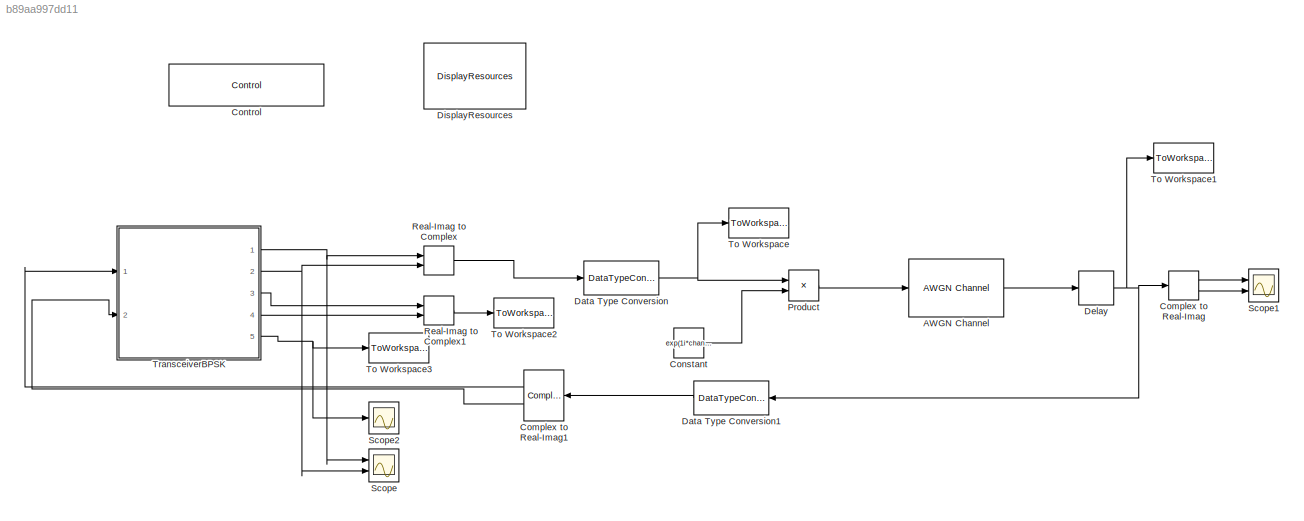
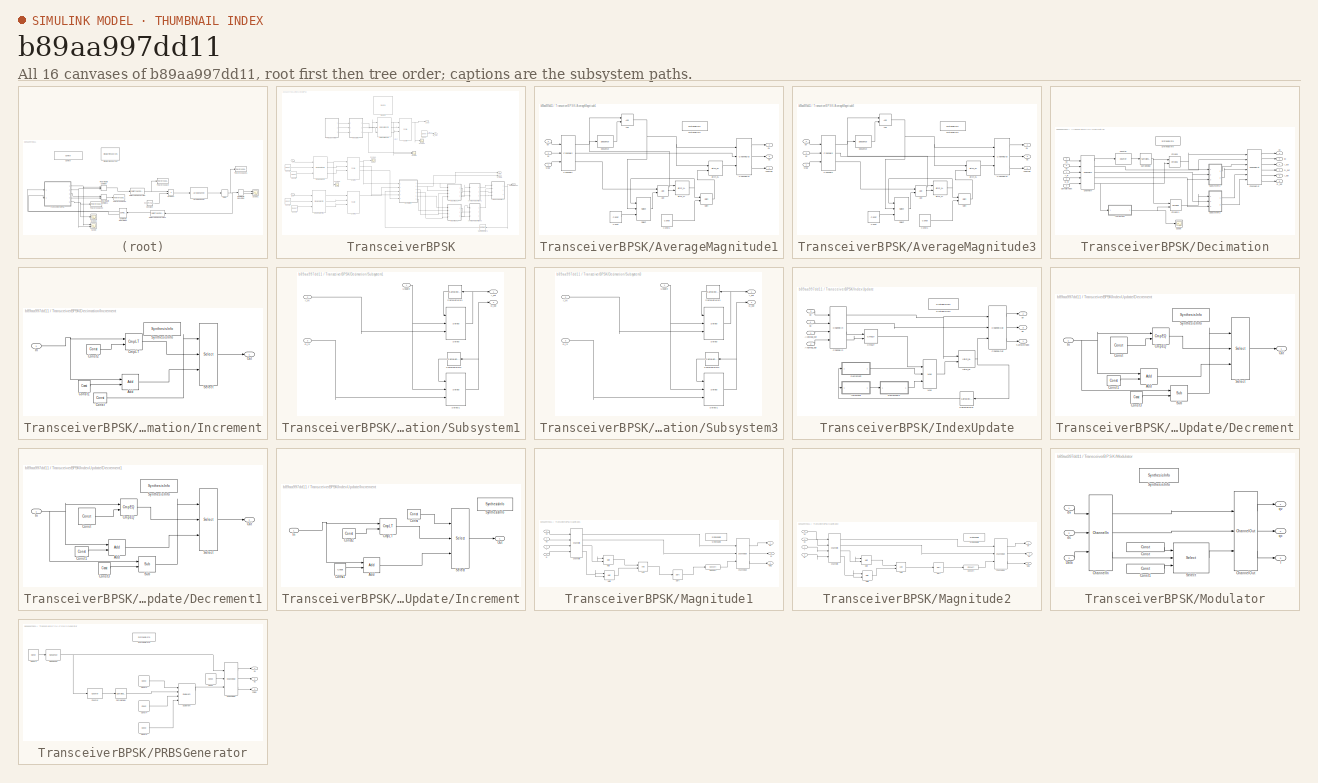
[diagram: thumbnail index - all 16 canvases of the model, root first then tree order]
MODEL slx_b89aa997dd11
KIND model
CONFIG AbsTol = auto
CONFIG EnableMultiTasking = off
CONFIG FixedStep = stepSize
CONFIG InitFcn = MCC150_setup
CONFIG MaxStep = auto
CONFIG MinStep = auto
CONFIG RelTol = 1e-3
CONFIG SampleTimeConstraint = Unconstrained
CONFIG Solver = FixedStepAuto
CONFIG SolverName = FixedStepAuto
CONFIG StartTime = 0.0
CONFIG StopTime = stopTime*6
BLOCK [Reference] AWGN Channel  REF=commchan3/AWGN
Channel
  Ports = [1, 1]
  SourceBlock = commchan3/AWGN\nChannel
  SourceProductBaseCode = CM
  SourceProductName = Communications System Toolbox
  SourceType = AWGN Channel
  UserDataPersistent = on
BLOCK [ComplexToRealImag] Complex to Real-Imag
  Ports = [1, 2]
BLOCK [ComplexToRealImag] Complex to Real-Imag1
  Ports = [1, 2]
BLOCK [Constant] Constant
  Value = exp(1i*chan.phase)
BLOCK [Reference] Control  REF=DSPBABase/Control
  Ports = []
  SourceBlock = DSPBABase/Control
  SourceType = DSP Builder Advanced Blockset Control Block
BLOCK [DataTypeConversion] Data Type Conversion
  OutDataTypeStr = double
  RndMeth = Floor
  SaturateOnIntegerOverflow = off
BLOCK [DataTypeConversion] Data Type Conversion1
  OutDataTypeStr = fixdt(true, wordLength)
  OutMax = 2^(wordLength-1)-1
  OutMin = -(2^(wordLength-1)-1)
  RndMeth = Floor
  SaturateOnIntegerOverflow = off
BLOCK [Delay] Delay
  DelayLength = chan.dly
  InputPortMap = u0
  Ports = [1, 1]
BLOCK [Reference] DisplayResources  REF=DSPBAUtilities/DisplayResources
  Ports = []
  SourceBlock = DSPBAUtilities/DisplayResources
BLOCK [Product] Product
  InputSameDT = off
  OutDataTypeStr = Inherit: Inherit via internal rule
  Ports = [2, 1]
  RndMeth = Floor
  SaturateOnIntegerOverflow = off
BLOCK [RealImagToComplex] Real-Imag to Complex
  Ports = [2, 1]
BLOCK [RealImagToComplex] Real-Imag to Complex1
  Ports = [2, 1]
BLOCK [Scope] Scope
  NumInputPorts = 2
  Ports = [2]
  ScopeSpecificationString = Simulink.scopes.TimeScopeBlockCfg('CurrentConfiguration', extmgr.ConfigurationSet(extmgr.Configuration('Core','General UI',true),extmgr.Configuration('Core','Source UI',true),extmgr.Configuration('Sources','WiredSimulink',true,'DataLoggingVariableName','ScopeData2'),extmgr.Configuration('Visuals','Time Domain',true,'SerializedDisplays',{struct('MinYLimReal','-1357.5','MaxYLimReal','1357.5','YLabel...<+1434ch>
BLOCK [Scope] Scope1
  NumInputPorts = 2
  Ports = [2]
  ScopeSpecificationString = Simulink.scopes.TimeScopeBlockCfg('CurrentConfiguration', extmgr.ConfigurationSet(extmgr.Configuration('Core','General UI',true),extmgr.Configuration('Core','Source UI',true),extmgr.Configuration('Sources','WiredSimulink',true,'DataLoggingVariableName','ScopeData3'),extmgr.Configuration('Visuals','Time Domain',true,'SerializedDisplays',{struct('MinYLimReal','-1259.13146','MaxYLimReal','1286.57545'...<+1459ch>
BLOCK [Scope] Scope2
  NumInputPorts = 1
  Ports = [1]
  ScopeSpecificationString = Simulink.scopes.TimeScopeBlockCfg('CurrentConfiguration', extmgr.ConfigurationSet(extmgr.Configuration('Core','General UI',true),extmgr.Configuration('Core','Source UI',true),extmgr.Configuration('Sources','WiredSimulink',true,'DataLoggingVariableName','ScopeData1'),extmgr.Configuration('Visuals','Time Domain',true,'SerializedDisplays',{struct('MinYLimReal','-1.00000','MaxYLimReal','1.00000','YLab...<+1376ch>
BLOCK [ToWorkspace] To Workspace
  FixptAsFi = on
  MaxDataPoints = inf
  Ports = [1]
  SampleTime = -1
  Save2DSignal = 3-D array (concatenate along third dimension)
  SaveFormat = Timeseries
  VariableName = txSave
BLOCK [ToWorkspace] To Workspace1
  FixptAsFi = on
  MaxDataPoints = inf
  Ports = [1]
  SampleTime = -1
  Save2DSignal = 3-D array (concatenate along third dimension)
  SaveFormat = Timeseries
  VariableName = rxSave
BLOCK [ToWorkspace] To Workspace2
  FixptAsFi = on
  MaxDataPoints = inf
  Ports = [1]
  SampleTime = -1
  Save2DSignal = 3-D array (concatenate along third dimension)
  SaveFormat = Timeseries
  VariableName = SymbSave
BLOCK [ToWorkspace] To Workspace3
  FixptAsFi = on
  MaxDataPoints = inf
  Ports = [1]
  SampleTime = -1
  Save2DSignal = 3-D array (concatenate along third dimension)
  SaveFormat = Timeseries
  VariableName = SampleIndex
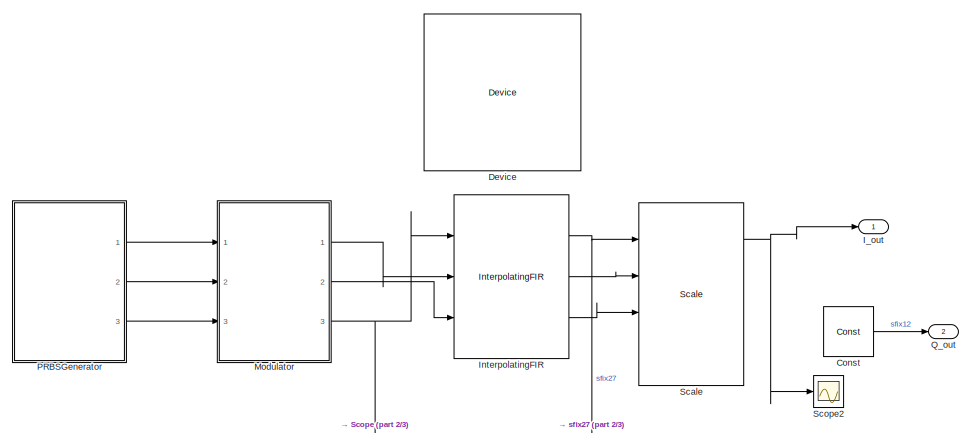
[diagram: TransceiverBPSK - part 1/3, top center region]
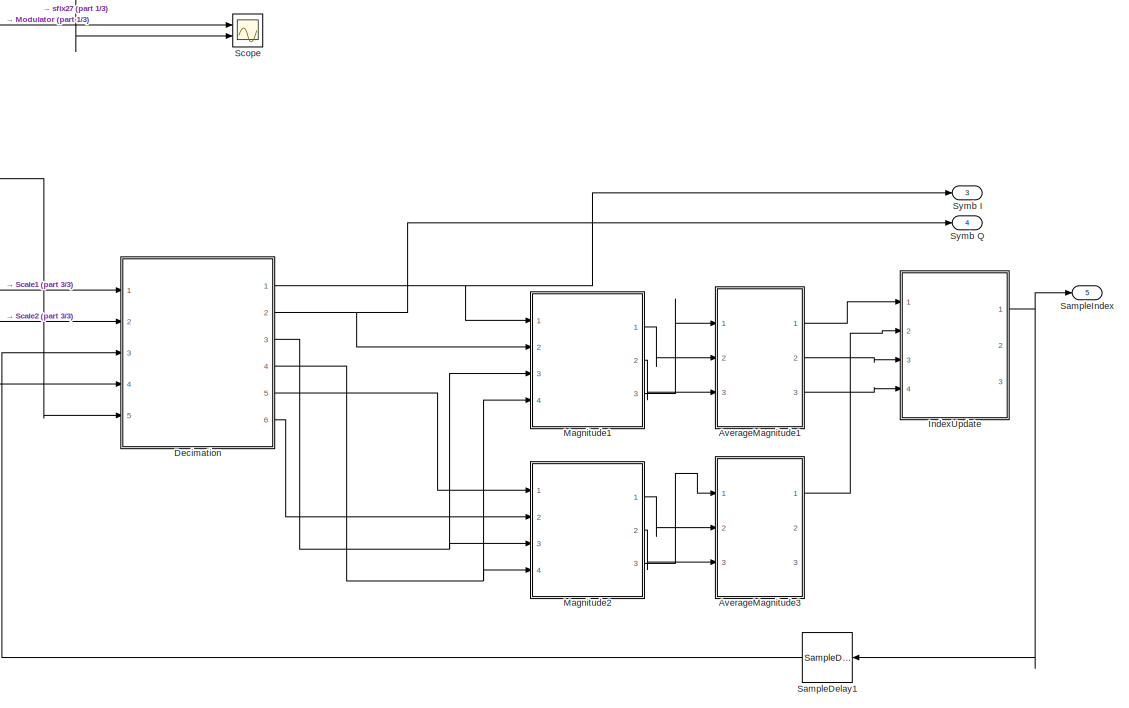
[diagram: TransceiverBPSK - part 2/3, bottom right region]
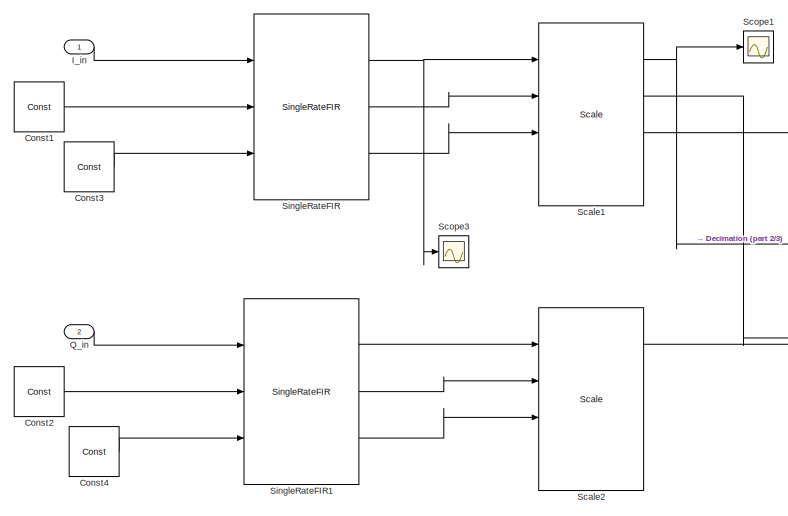
[diagram: TransceiverBPSK - part 3/3, middle left region]
BLOCK [SubSystem] TransceiverBPSK
  Ports = [2, 5]
  RequestExecContextInheritance = off
  Variant = off
BLOCK [Outport] TransceiverBPSK/ SampleIndex
  IconDisplay = Port number
  Port = 5
BLOCK [Outport] TransceiverBPSK/ Symb I 
  IconDisplay = Port number
  Port = 3
BLOCK [Outport] TransceiverBPSK/ Symb Q
  IconDisplay = Port number
  Port = 4
BLOCK [SubSystem] TransceiverBPSK/AverageMagnitude1
  Ports = [3, 3]
  RequestExecContextInheritance = off
  Variant = off
BLOCK [Reference] TransceiverBPSK/AverageMagnitude1/Add  REF=DSPBAPrim/Add
  Ports = [2, 1]
  SourceBlock = DSPBAPrim/Add
  SourceType = DSP Builder Advanced Blockset primitive
BLOCK [Reference] TransceiverBPSK/AverageMagnitude1/And  REF=DSPBAPrim/And
  Ports = [2, 1]
  SourceBlock = DSPBAPrim/And
  SourceType = DSP Builder Advanced Blockset primitive
BLOCK [Outport] TransceiverBPSK/AverageMagnitude1/AvgMag
  IconDisplay = Port number
BLOCK [Reference] TransceiverBPSK/AverageMagnitude1/ChannelIn  REF=DSPBAPrim/ChannelIn
  Ports = [3, 3]
  SourceBlock = DSPBAPrim/ChannelIn
  SourceType = DSP Builder Advanced Blockset primitive
BLOCK [Reference] TransceiverBPSK/AverageMagnitude1/ChannelOut  REF=DSPBAPrim/ChannelOut
  Ports = [3, 3]
  SourceBlock = DSPBAPrim/ChannelOut
  SourceType = DSP Builder Advanced Blockset primitive
BLOCK [Reference] TransceiverBPSK/AverageMagnitude1/Const  REF=DSPBAPrim/Const
  Ports = [0, 1]
  SourceBlock = DSPBAPrim/Const
  SourceType = DSP Builder Advanced Blockset primitive
BLOCK [Reference] TransceiverBPSK/AverageMagnitude1/Const1  REF=DSPBAPrim/Const
  Ports = [0, 1]
  SourceBlock = DSPBAPrim/Const
  SourceType = DSP Builder Advanced Blockset primitive
BLOCK [Inport] TransceiverBPSK/AverageMagnitude1/Mag
  IconDisplay = Port number
BLOCK [Reference] TransceiverBPSK/AverageMagnitude1/Select  REF=DSPBAPrim/Select
  Ports = [3, 1]
  SourceBlock = DSPBAPrim/Select
  SourceType = DSP Builder Advanced Blockset primitive
BLOCK [Reference] TransceiverBPSK/AverageMagnitude1/Sequence  REF=DSPBAPrim/Sequence
  Ports = [1, 1]
  SourceBlock = DSPBAPrim/Sequence
  SourceType = DSP Builder Advanced Blockset primitive
BLOCK [Reference] TransceiverBPSK/AverageMagnitude1/Shift  REF=DSPBAPrim/Shift
  Ports = [2, 1]
  SourceBlock = DSPBAPrim/Shift
  SourceType = DSP Builder Advanced Blockset primitive
BLOCK [Reference] TransceiverBPSK/AverageMagnitude1/SynthesisInfo  REF=DSPBAPrim/SynthesisInfo
  Ports = []
  SourceBlock = DSPBAPrim/SynthesisInfo
  SourceType = DSP Builder Advanced Blockset primitive
BLOCK [Inport] TransceiverBPSK/AverageMagnitude1/dc
  IconDisplay = Port number
  Port = 3
BLOCK [Inport] TransceiverBPSK/AverageMagnitude1/dv
  IconDisplay = Port number
  Port = 2
BLOCK [Reference] TransceiverBPSK/AverageMagnitude1/latch_0L  REF=DSPBAControl/latch_0L
  Ports = [2, 1]
  SourceBlock = DSPBAControl/latch_0L
BLOCK [Reference] TransceiverBPSK/AverageMagnitude1/latch_1L  REF=DSPBAControl/latch_1L
  Ports = [2, 1]
  SourceBlock = DSPBAControl/latch_1L
BLOCK [Outport] TransceiverBPSK/AverageMagnitude1/qc
  IconDisplay = Port number
  Port = 3
BLOCK [Outport] TransceiverBPSK/AverageMagnitude1/qv
  IconDisplay = Port number
  Port = 2
BLOCK [SubSystem] TransceiverBPSK/AverageMagnitude3
  Ports = [3, 3]
  RequestExecContextInheritance = off
  Variant = off
BLOCK [Reference] TransceiverBPSK/AverageMagnitude3/Add  REF=DSPBAPrim/Add
  Ports = [2, 1]
  SourceBlock = DSPBAPrim/Add
  SourceType = DSP Builder Advanced Blockset primitive
BLOCK [Reference] TransceiverBPSK/AverageMagnitude3/And  REF=DSPBAPrim/And
  Ports = [2, 1]
  SourceBlock = DSPBAPrim/And
  SourceType = DSP Builder Advanced Blockset primitive
BLOCK [Outport] TransceiverBPSK/AverageMagnitude3/AvgMag
  IconDisplay = Port number
BLOCK [Reference] TransceiverBPSK/AverageMagnitude3/ChannelIn  REF=DSPBAPrim/ChannelIn
  Ports = [3, 3]
  SourceBlock = DSPBAPrim/ChannelIn
  SourceType = DSP Builder Advanced Blockset primitive
BLOCK [Reference] TransceiverBPSK/AverageMagnitude3/ChannelOut  REF=DSPBAPrim/ChannelOut
  Ports = [3, 3]
  SourceBlock = DSPBAPrim/ChannelOut
  SourceType = DSP Builder Advanced Blockset primitive
BLOCK [Reference] TransceiverBPSK/AverageMagnitude3/Const  REF=DSPBAPrim/Const
  Ports = [0, 1]
  SourceBlock = DSPBAPrim/Const
  SourceType = DSP Builder Advanced Blockset primitive
BLOCK [Reference] TransceiverBPSK/AverageMagnitude3/Const1  REF=DSPBAPrim/Const
  Ports = [0, 1]
  SourceBlock = DSPBAPrim/Const
  SourceType = DSP Builder Advanced Blockset primitive
BLOCK [Inport] TransceiverBPSK/AverageMagnitude3/Mag
  IconDisplay = Port number
BLOCK [Reference] TransceiverBPSK/AverageMagnitude3/Select  REF=DSPBAPrim/Select
  Ports = [3, 1]
  SourceBlock = DSPBAPrim/Select
  SourceType = DSP Builder Advanced Blockset primitive
BLOCK [Reference] TransceiverBPSK/AverageMagnitude3/Sequence  REF=DSPBAPrim/Sequence
  Ports = [1, 1]
  SourceBlock = DSPBAPrim/Sequence
  SourceType = DSP Builder Advanced Blockset primitive
BLOCK [Reference] TransceiverBPSK/AverageMagnitude3/Shift  REF=DSPBAPrim/Shift
  Ports = [2, 1]
  SourceBlock = DSPBAPrim/Shift
  SourceType = DSP Builder Advanced Blockset primitive
BLOCK [Reference] TransceiverBPSK/AverageMagnitude3/SynthesisInfo  REF=DSPBAPrim/SynthesisInfo
  Ports = []
  SourceBlock = DSPBAPrim/SynthesisInfo
  SourceType = DSP Builder Advanced Blockset primitive
BLOCK [Inport] TransceiverBPSK/AverageMagnitude3/dc
  IconDisplay = Port number
  Port = 3
BLOCK [Inport] TransceiverBPSK/AverageMagnitude3/dv
  IconDisplay = Port number
  Port = 2
BLOCK [Reference] TransceiverBPSK/AverageMagnitude3/latch_0L  REF=DSPBAControl/latch_0L
  Ports = [2, 1]
  SourceBlock = DSPBAControl/latch_0L
BLOCK [Reference] TransceiverBPSK/AverageMagnitude3/latch_1L  REF=DSPBAControl/latch_1L
  Ports = [2, 1]
  SourceBlock = DSPBAControl/latch_1L
BLOCK [Outport] TransceiverBPSK/AverageMagnitude3/qc
  IconDisplay = Port number
  Port = 3
BLOCK [Outport] TransceiverBPSK/AverageMagnitude3/qv
  IconDisplay = Port number
  Port = 2
BLOCK [Reference] TransceiverBPSK/Const  REF=DSPBAPrim/Const
  Ports = [0, 1]
  SourceBlock = DSPBAPrim/Const
  SourceType = DSP Builder Advanced Blockset primitive
BLOCK [Reference] TransceiverBPSK/Const1  REF=DSPBAPrim/Const
  Ports = [0, 1]
  SourceBlock = DSPBAPrim/Const
  SourceType = DSP Builder Advanced Blockset primitive
BLOCK [Reference] TransceiverBPSK/Const2  REF=DSPBAPrim/Const
  Ports = [0, 1]
  SourceBlock = DSPBAPrim/Const
  SourceType = DSP Builder Advanced Blockset primitive
BLOCK [Reference] TransceiverBPSK/Const3  REF=DSPBAPrim/Const
  Ports = [0, 1]
  SourceBlock = DSPBAPrim/Const
  SourceType = DSP Builder Advanced Blockset primitive
BLOCK [Reference] TransceiverBPSK/Const4  REF=DSPBAPrim/Const
  Ports = [0, 1]
  SourceBlock = DSPBAPrim/Const
  SourceType = DSP Builder Advanced Blockset primitive
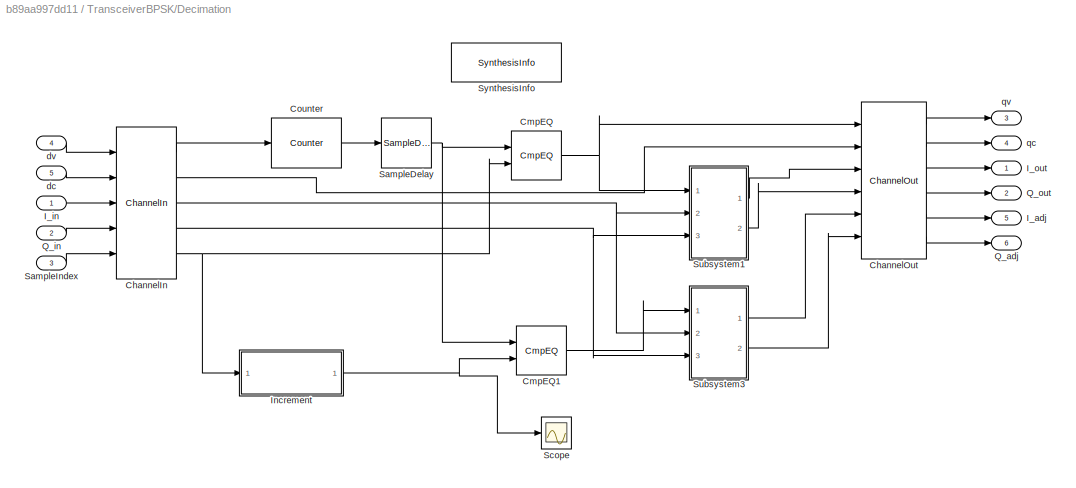
BLOCK [SubSystem] TransceiverBPSK/Decimation
  Ports = [5, 6]
  RequestExecContextInheritance = off
  Variant = off
BLOCK [Reference] TransceiverBPSK/Decimation/ChannelIn  REF=DSPBAPrim/ChannelIn
  Ports = [5, 5]
  SourceBlock = DSPBAPrim/ChannelIn
  SourceType = DSP Builder Advanced Blockset primitive
BLOCK [Reference] TransceiverBPSK/Decimation/ChannelOut  REF=DSPBAPrim/ChannelOut
  Ports = [6, 6]
  SourceBlock = DSPBAPrim/ChannelOut
  SourceType = DSP Builder Advanced Blockset primitive
BLOCK [Reference] TransceiverBPSK/Decimation/CmpEQ  REF=DSPBAPrim/CmpEQ
  Ports = [2, 1]
  SourceBlock = DSPBAPrim/CmpEQ
  SourceType = DSP Builder Advanced Blockset primitive
BLOCK [Reference] TransceiverBPSK/Decimation/CmpEQ1  REF=DSPBAPrim/CmpEQ
  Ports = [2, 1]
  SourceBlock = DSPBAPrim/CmpEQ
  SourceType = DSP Builder Advanced Blockset primitive
BLOCK [Reference] TransceiverBPSK/Decimation/Counter  REF=DSPBAPrim/Counter
  Ports = [1, 1]
  SourceBlock = DSPBAPrim/Counter
  SourceType = DSP Builder Advanced Blockset primitive
BLOCK [Outport] TransceiverBPSK/Decimation/I_adj
  IconDisplay = Port number
  Port = 5
BLOCK [Inport] TransceiverBPSK/Decimation/I_in
  IconDisplay = Port number
BLOCK [Outport] TransceiverBPSK/Decimation/I_out
  IconDisplay = Port number
BLOCK [SubSystem] TransceiverBPSK/Decimation/Increment
  Ports = [1, 1]
  RequestExecContextInheritance = off
  Variant = off
BLOCK [Reference] TransceiverBPSK/Decimation/Increment/Add  REF=DSPBAPrim/Add
  Ports = [2, 1]
  SourceBlock = DSPBAPrim/Add
  SourceType = DSP Builder Advanced Blockset primitive
BLOCK [Reference] TransceiverBPSK/Decimation/Increment/CmpLT  REF=DSPBAPrim/CmpLT
  Ports = [2, 1]
  SourceBlock = DSPBAPrim/CmpLT
  SourceType = DSP Builder Advanced Blockset primitive
BLOCK [Reference] TransceiverBPSK/Decimation/Increment/Const  REF=DSPBAPrim/Const
  Ports = [0, 1]
  SourceBlock = DSPBAPrim/Const
  SourceType = DSP Builder Advanced Blockset primitive
BLOCK [Reference] TransceiverBPSK/Decimation/Increment/Const1  REF=DSPBAPrim/Const
  Ports = [0, 1]
  SourceBlock = DSPBAPrim/Const
  SourceType = DSP Builder Advanced Blockset primitive
BLOCK [Reference] TransceiverBPSK/Decimation/Increment/Const2  REF=DSPBAPrim/Const
  Ports = [0, 1]
  SourceBlock = DSPBAPrim/Const
  SourceType = DSP Builder Advanced Blockset primitive
BLOCK [Inport] TransceiverBPSK/Decimation/Increment/In
  IconDisplay = Port number
BLOCK [Outport] TransceiverBPSK/Decimation/Increment/Out
  IconDisplay = Port number
BLOCK [Reference] TransceiverBPSK/Decimation/Increment/Select  REF=DSPBAPrim/Select
  Ports = [3, 1]
  SourceBlock = DSPBAPrim/Select
  SourceType = DSP Builder Advanced Blockset primitive
BLOCK [Reference] TransceiverBPSK/Decimation/Increment/SynthesisInfo  REF=DSPBAPrim/SynthesisInfo
  Ports = []
  SourceBlock = DSPBAPrim/SynthesisInfo
  SourceType = DSP Builder Advanced Blockset primitive
BLOCK [Outport] TransceiverBPSK/Decimation/Q_adj
  IconDisplay = Port number
  Port = 6
BLOCK [Inport] TransceiverBPSK/Decimation/Q_in
  IconDisplay = Port number
  Port = 2
BLOCK [Outport] TransceiverBPSK/Decimation/Q_out
  IconDisplay = Port number
  Port = 2
BLOCK [Reference] TransceiverBPSK/Decimation/SampleDelay  REF=DSPBAPrim/SampleDelay
  Ports = [1, 1]
  SourceBlock = DSPBAPrim/SampleDelay
  SourceType = DSP Builder Advanced Blockset primitive
BLOCK [Inport] TransceiverBPSK/Decimation/SampleIndex
  IconDisplay = Port number
  Port = 3
BLOCK [Scope] TransceiverBPSK/Decimation/Scope
  NumInputPorts = 1
  Ports = [1]
  ScopeSpecificationString = Simulink.scopes.TimeScopeBlockCfg('CurrentConfiguration', extmgr.ConfigurationSet(extmgr.Configuration('Core','General UI',true),extmgr.Configuration('Core','Source UI',true),extmgr.Configuration('Sources','WiredSimulink',true,'DataLoggingVariableName','ScopeData1'),extmgr.Configuration('Visuals','Time Domain',true,'SerializedDisplays',{struct('MinYLimReal','-0.125','MaxYLimReal','1.125','YLabelRe...<+1375ch>
BLOCK [SubSystem] TransceiverBPSK/Decimation/Subsystem1
  Ports = [3, 2]
  RequestExecContextInheritance = off
  Variant = off
BLOCK [Inport] TransceiverBPSK/Decimation/Subsystem1/I_in
  IconDisplay = Port number
  Port = 2
BLOCK [Outport] TransceiverBPSK/Decimation/Subsystem1/I_out
  IconDisplay = Port number
BLOCK [Inport] TransceiverBPSK/Decimation/Subsystem1/Q_in
  IconDisplay = Port number
  Port = 3
BLOCK [Outport] TransceiverBPSK/Decimation/Subsystem1/Q_out
  IconDisplay = Port number
  Port = 2
BLOCK [Reference] TransceiverBPSK/Decimation/Subsystem1/SampleDelay1  REF=DSPBAPrim/SampleDelay
  Ports = [1, 1]
  SourceBlock = DSPBAPrim/SampleDelay
  SourceType = DSP Builder Advanced Blockset primitive
BLOCK [Reference] TransceiverBPSK/Decimation/Subsystem1/SampleDelay2  REF=DSPBAPrim/SampleDelay
  Ports = [1, 1]
  SourceBlock = DSPBAPrim/SampleDelay
  SourceType = DSP Builder Advanced Blockset primitive
BLOCK [Reference] TransceiverBPSK/Decimation/Subsystem1/Select  REF=DSPBAPrim/Select
  Ports = [3, 1]
  SourceBlock = DSPBAPrim/Select
  SourceType = DSP Builder Advanced Blockset primitive
BLOCK [Reference] TransceiverBPSK/Decimation/Subsystem1/Select1  REF=DSPBAPrim/Select
  Ports = [3, 1]
  SourceBlock = DSPBAPrim/Select
  SourceType = DSP Builder Advanced Blockset primitive
BLOCK [Inport] TransceiverBPSK/Decimation/Subsystem1/Update
  IconDisplay = Port number
BLOCK [SubSystem] TransceiverBPSK/Decimation/Subsystem3
  Ports = [3, 2]
  RequestExecContextInheritance = off
  Variant = off
BLOCK [Inport] TransceiverBPSK/Decimation/Subsystem3/I_in
  IconDisplay = Port number
  Port = 2
BLOCK [Outport] TransceiverBPSK/Decimation/Subsystem3/I_out
  IconDisplay = Port number
BLOCK [Inport] TransceiverBPSK/Decimation/Subsystem3/Q_in
  IconDisplay = Port number
  Port = 3
BLOCK [Outport] TransceiverBPSK/Decimation/Subsystem3/Q_out
  IconDisplay = Port number
  Port = 2
BLOCK [Reference] TransceiverBPSK/Decimation/Subsystem3/SampleDelay1  REF=DSPBAPrim/SampleDelay
  Ports = [1, 1]
  SourceBlock = DSPBAPrim/SampleDelay
  SourceType = DSP Builder Advanced Blockset primitive
BLOCK [Reference] TransceiverBPSK/Decimation/Subsystem3/SampleDelay2  REF=DSPBAPrim/SampleDelay
  Ports = [1, 1]
  SourceBlock = DSPBAPrim/SampleDelay
  SourceType = DSP Builder Advanced Blockset primitive
BLOCK [Reference] TransceiverBPSK/Decimation/Subsystem3/Select  REF=DSPBAPrim/Select
  Ports = [3, 1]
  SourceBlock = DSPBAPrim/Select
  SourceType = DSP Builder Advanced Blockset primitive
BLOCK [Reference] TransceiverBPSK/Decimation/Subsystem3/Select1  REF=DSPBAPrim/Select
  Ports = [3, 1]
  SourceBlock = DSPBAPrim/Select
  SourceType = DSP Builder Advanced Blockset primitive
BLOCK [Inport] TransceiverBPSK/Decimation/Subsystem3/Update
  IconDisplay = Port number
BLOCK [Reference] TransceiverBPSK/Decimation/SynthesisInfo  REF=DSPBAPrim/SynthesisInfo
  Ports = []
  SourceBlock = DSPBAPrim/SynthesisInfo
  SourceType = DSP Builder Advanced Blockset primitive
BLOCK [Inport] TransceiverBPSK/Decimation/dc
  IconDisplay = Port number
  Port = 5
BLOCK [Inport] TransceiverBPSK/Decimation/dv
  IconDisplay = Port number
  Port = 4
BLOCK [Outport] TransceiverBPSK/Decimation/qc
  IconDisplay = Port number
  Port = 4
BLOCK [Outport] TransceiverBPSK/Decimation/qv
  IconDisplay = Port number
  Port = 3
BLOCK [Reference] TransceiverBPSK/Device  REF=DSPBABase/Device
  Ports = []
  SourceBlock = DSPBABase/Device
  SourceType = DSP Builder Advanced Blockset Device Block
BLOCK [Inport] TransceiverBPSK/I_in 
  IconDisplay = Port number
BLOCK [Outport] TransceiverBPSK/I_out
  IconDisplay = Port number
BLOCK [SubSystem] TransceiverBPSK/IndexUpdate
  Ports = [4, 3]
  RequestExecContextInheritance = off
  Variant = off
BLOCK [Inport] TransceiverBPSK/IndexUpdate/AvgMag_adj
  IconDisplay = Port number
  Port = 2
BLOCK [Inport] TransceiverBPSK/IndexUpdate/AvgMag_out
  IconDisplay = Port number
BLOCK [Reference] TransceiverBPSK/IndexUpdate/ChannelIn  REF=DSPBAPrim/ChannelIn
  Ports = [4, 4]
  SourceBlock = DSPBAPrim/ChannelIn
  SourceType = DSP Builder Advanced Blockset primitive
BLOCK [Reference] TransceiverBPSK/IndexUpdate/ChannelOut  REF=DSPBAPrim/ChannelOut
  Ports = [3, 3]
  SourceBlock = DSPBAPrim/ChannelOut
  SourceType = DSP Builder Advanced Blockset primitive
BLOCK [Reference] TransceiverBPSK/IndexUpdate/CmpLT  REF=DSPBAPrim/CmpLT
  Ports = [2, 1]
  SourceBlock = DSPBAPrim/CmpLT
  SourceType = DSP Builder Advanced Blockset primitive
BLOCK [SubSystem] TransceiverBPSK/IndexUpdate/Decrement
  Ports = [1, 1]
  RequestExecContextInheritance = off
  Variant = off
BLOCK [Reference] TransceiverBPSK/IndexUpdate/Decrement/Add  REF=DSPBAPrim/Add
  Ports = [2, 1]
  SourceBlock = DSPBAPrim/Add
  SourceType = DSP Builder Advanced Blockset primitive
BLOCK [Reference] TransceiverBPSK/IndexUpdate/Decrement/CmpEQ  REF=DSPBAPrim/CmpEQ
  Ports = [2, 1]
  SourceBlock = DSPBAPrim/CmpEQ
  SourceType = DSP Builder Advanced Blockset primitive
BLOCK [Reference] TransceiverBPSK/IndexUpdate/Decrement/Const  REF=DSPBAPrim/Const
  Ports = [0, 1]
  SourceBlock = DSPBAPrim/Const
  SourceType = DSP Builder Advanced Blockset primitive
BLOCK [Reference] TransceiverBPSK/IndexUpdate/Decrement/Const1  REF=DSPBAPrim/Const
  Ports = [0, 1]
  SourceBlock = DSPBAPrim/Const
  SourceType = DSP Builder Advanced Blockset primitive
BLOCK [Reference] TransceiverBPSK/IndexUpdate/Decrement/Const3  REF=DSPBAPrim/Const
  Ports = [0, 1]
  SourceBlock = DSPBAPrim/Const
  SourceType = DSP Builder Advanced Blockset primitive
BLOCK [Inport] TransceiverBPSK/IndexUpdate/Decrement/In
  IconDisplay = Port number
BLOCK [Outport] TransceiverBPSK/IndexUpdate/Decrement/Out
  IconDisplay = Port number
BLOCK [Reference] TransceiverBPSK/IndexUpdate/Decrement/Select  REF=DSPBAPrim/Select
  Ports = [3, 1]
  SourceBlock = DSPBAPrim/Select
  SourceType = DSP Builder Advanced Blockset primitive
BLOCK [Reference] TransceiverBPSK/IndexUpdate/Decrement/Sub  REF=DSPBAPrim/Sub
  Ports = [2, 1]
  SourceBlock = DSPBAPrim/Sub
  SourceType = DSP Builder Advanced Blockset primitive
BLOCK [Reference] TransceiverBPSK/IndexUpdate/Decrement/SynthesisInfo  REF=DSPBAPrim/SynthesisInfo
  Ports = []
  SourceBlock = DSPBAPrim/SynthesisInfo
  SourceType = DSP Builder Advanced Blockset primitive
BLOCK [SubSystem] TransceiverBPSK/IndexUpdate/Decrement1
  Ports = [1, 1]
  RequestExecContextInheritance = off
  Variant = off
BLOCK [Reference] TransceiverBPSK/IndexUpdate/Decrement1/Add  REF=DSPBAPrim/Add
  Ports = [2, 1]
  SourceBlock = DSPBAPrim/Add
  SourceType = DSP Builder Advanced Blockset primitive
BLOCK [Reference] TransceiverBPSK/IndexUpdate/Decrement1/CmpEQ  REF=DSPBAPrim/CmpEQ
  Ports = [2, 1]
  SourceBlock = DSPBAPrim/CmpEQ
  SourceType = DSP Builder Advanced Blockset primitive
BLOCK [Reference] TransceiverBPSK/IndexUpdate/Decrement1/Const  REF=DSPBAPrim/Const
  Ports = [0, 1]
  SourceBlock = DSPBAPrim/Const
  SourceType = DSP Builder Advanced Blockset primitive
BLOCK [Reference] TransceiverBPSK/IndexUpdate/Decrement1/Const1  REF=DSPBAPrim/Const
  Ports = [0, 1]
  SourceBlock = DSPBAPrim/Const
  SourceType = DSP Builder Advanced Blockset primitive
BLOCK [Reference] TransceiverBPSK/IndexUpdate/Decrement1/Const3  REF=DSPBAPrim/Const
  Ports = [0, 1]
  SourceBlock = DSPBAPrim/Const
  SourceType = DSP Builder Advanced Blockset primitive
BLOCK [Inport] TransceiverBPSK/IndexUpdate/Decrement1/In
  IconDisplay = Port number
BLOCK [Outport] TransceiverBPSK/IndexUpdate/Decrement1/Out
  IconDisplay = Port number
BLOCK [Reference] TransceiverBPSK/IndexUpdate/Decrement1/Select  REF=DSPBAPrim/Select
  Ports = [3, 1]
  SourceBlock = DSPBAPrim/Select
  SourceType = DSP Builder Advanced Blockset primitive
BLOCK [Reference] TransceiverBPSK/IndexUpdate/Decrement1/Sub  REF=DSPBAPrim/Sub
  Ports = [2, 1]
  SourceBlock = DSPBAPrim/Sub
  SourceType = DSP Builder Advanced Blockset primitive
BLOCK [Reference] TransceiverBPSK/IndexUpdate/Decrement1/SynthesisInfo  REF=DSPBAPrim/SynthesisInfo
  Ports = []
  SourceBlock = DSPBAPrim/SynthesisInfo
  SourceType = DSP Builder Advanced Blockset primitive
BLOCK [SubSystem] TransceiverBPSK/IndexUpdate/Increment
  Ports = [1, 1]
  RequestExecContextInheritance = off
  Variant = off
BLOCK [Reference] TransceiverBPSK/IndexUpdate/Increment/Add  REF=DSPBAPrim/Add
  Ports = [2, 1]
  SourceBlock = DSPBAPrim/Add
  SourceType = DSP Builder Advanced Blockset primitive
BLOCK [Reference] TransceiverBPSK/IndexUpdate/Increment/CmpLT  REF=DSPBAPrim/CmpLT
  Ports = [2, 1]
  SourceBlock = DSPBAPrim/CmpLT
  SourceType = DSP Builder Advanced Blockset primitive
BLOCK [Reference] TransceiverBPSK/IndexUpdate/Increment/Const  REF=DSPBAPrim/Const
  Ports = [0, 1]
  SourceBlock = DSPBAPrim/Const
  SourceType = DSP Builder Advanced Blockset primitive
BLOCK [Reference] TransceiverBPSK/IndexUpdate/Increment/Const1  REF=DSPBAPrim/Const
  Ports = [0, 1]
  SourceBlock = DSPBAPrim/Const
  SourceType = DSP Builder Advanced Blockset primitive
BLOCK [Reference] TransceiverBPSK/IndexUpdate/Increment/Const2  REF=DSPBAPrim/Const
  Ports = [0, 1]
  SourceBlock = DSPBAPrim/Const
  SourceType = DSP Builder Advanced Blockset primitive
BLOCK [Inport] TransceiverBPSK/IndexUpdate/Increment/In
  IconDisplay = Port number
BLOCK [Outport] TransceiverBPSK/IndexUpdate/Increment/Out
  IconDisplay = Port number
BLOCK [Reference] TransceiverBPSK/IndexUpdate/Increment/Select  REF=DSPBAPrim/Select
  Ports = [3, 1]
  SourceBlock = DSPBAPrim/Select
  SourceType = DSP Builder Advanced Blockset primitive
BLOCK [Reference] TransceiverBPSK/IndexUpdate/Increment/SynthesisInfo  REF=DSPBAPrim/SynthesisInfo
  Ports = []
  SourceBlock = DSPBAPrim/SynthesisInfo
  SourceType = DSP Builder Advanced Blockset primitive
BLOCK [Reference] TransceiverBPSK/IndexUpdate/Mux  REF=DSPBAPrim/Mux
  Ports = [3, 1]
  SourceBlock = DSPBAPrim/Mux
  SourceType = DSP Builder Advanced Blockset primitive
BLOCK [Reference] TransceiverBPSK/IndexUpdate/SampleDelay  REF=DSPBAPrim/SampleDelay
  Ports = [1, 1]
  SourceBlock = DSPBAPrim/SampleDelay
  SourceType = DSP Builder Advanced Blockset primitive
BLOCK [Outport] TransceiverBPSK/IndexUpdate/SampleIndex
  IconDisplay = Port number
BLOCK [Reference] TransceiverBPSK/IndexUpdate/SynthesisInfo  REF=DSPBAPrim/SynthesisInfo
  Ports = []
  SourceBlock = DSPBAPrim/SynthesisInfo
  SourceType = DSP Builder Advanced Blockset primitive
BLOCK [Inport] TransceiverBPSK/IndexUpdate/dc
  IconDisplay = Port number
  Port = 4
BLOCK [Inport] TransceiverBPSK/IndexUpdate/dv
  IconDisplay = Port number
  Port = 3
BLOCK [Reference] TransceiverBPSK/IndexUpdate/latch_0L  REF=DSPBAControl/latch_0L
  Ports = [2, 1]
  SourceBlock = DSPBAControl/latch_0L
BLOCK [Outport] TransceiverBPSK/IndexUpdate/qc
  IconDisplay = Port number
  Port = 3
BLOCK [Outport] TransceiverBPSK/IndexUpdate/qv
  IconDisplay = Port number
  Port = 2
BLOCK [Reference] TransceiverBPSK/InterpolatingFIR  REF=DSPBAFilters/InterpolatingFIR
  Ports = [3, 3]
  SourceBlock = DSPBAFilters/InterpolatingFIR
  SourceType = DSP Builder Advanced Blockset Interpolating FIR
BLOCK [SubSystem] TransceiverBPSK/Magnitude1
  Ports = [4, 3]
  RequestExecContextInheritance = off
  Variant = off
BLOCK [Reference] TransceiverBPSK/Magnitude1/Add  REF=DSPBAPrim/Add
  Ports = [2, 1]
  SourceBlock = DSPBAPrim/Add
  SourceType = DSP Builder Advanced Blockset primitive
BLOCK [Reference] TransceiverBPSK/Magnitude1/ChannelIn  REF=DSPBAPrim/ChannelIn
  Ports = [4, 4]
  SourceBlock = DSPBAPrim/ChannelIn
  SourceType = DSP Builder Advanced Blockset primitive
BLOCK [Reference] TransceiverBPSK/Magnitude1/ChannelOut  REF=DSPBAPrim/ChannelOut
  Ports = [3, 3]
  SourceBlock = DSPBAPrim/ChannelOut
  SourceType = DSP Builder Advanced Blockset primitive
BLOCK [Reference] TransceiverBPSK/Magnitude1/Convert  REF=DSPBAPrim/Convert
  Ports = [1, 1]
  SourceBlock = DSPBAPrim/Convert
  SourceType = DSP Builder Advanced Blockset primitive
BLOCK [Inport] TransceiverBPSK/Magnitude1/I
  IconDisplay = Port number
BLOCK [Outport] TransceiverBPSK/Magnitude1/Mag
  IconDisplay = Port number
  Port = 3
BLOCK [Reference] TransceiverBPSK/Magnitude1/Mult  REF=DSPBAPrim/Mult
  Ports = [2, 1]
  SourceBlock = DSPBAPrim/Mult
  SourceType = DSP Builder Advanced Blockset primitive
BLOCK [Reference] TransceiverBPSK/Magnitude1/Mult1  REF=DSPBAPrim/Mult
  Ports = [2, 1]
  SourceBlock = DSPBAPrim/Mult
  SourceType = DSP Builder Advanced Blockset primitive
BLOCK [Inport] TransceiverBPSK/Magnitude1/Q
  IconDisplay = Port number
  Port = 2
BLOCK [Reference] TransceiverBPSK/Magnitude1/Sqrt  REF=DSPBAPrim/Sqrt
  Ports = [1, 1]
  SourceBlock = DSPBAPrim/Sqrt
  SourceType = DSP Builder Advanced Blockset primitive
BLOCK [Reference] TransceiverBPSK/Magnitude1/SynthesisInfo  REF=DSPBAPrim/SynthesisInfo
  Ports = []
  SourceBlock = DSPBAPrim/SynthesisInfo
  SourceType = DSP Builder Advanced Blockset primitive
BLOCK [Inport] TransceiverBPSK/Magnitude1/dc
  IconDisplay = Port number
  Port = 4
BLOCK [Inport] TransceiverBPSK/Magnitude1/dv
  IconDisplay = Port number
  Port = 3
BLOCK [Outport] TransceiverBPSK/Magnitude1/qc
  IconDisplay = Port number
  Port = 2
BLOCK [Outport] TransceiverBPSK/Magnitude1/qv
  IconDisplay = Port number
BLOCK [SubSystem] TransceiverBPSK/Magnitude2
  Ports = [4, 3]
  RequestExecContextInheritance = off
  Variant = off
BLOCK [Reference] TransceiverBPSK/Magnitude2/Add  REF=DSPBAPrim/Add
  Ports = [2, 1]
  SourceBlock = DSPBAPrim/Add
  SourceType = DSP Builder Advanced Blockset primitive
BLOCK [Reference] TransceiverBPSK/Magnitude2/ChannelIn  REF=DSPBAPrim/ChannelIn
  Ports = [4, 4]
  SourceBlock = DSPBAPrim/ChannelIn
  SourceType = DSP Builder Advanced Blockset primitive
BLOCK [Reference] TransceiverBPSK/Magnitude2/ChannelOut  REF=DSPBAPrim/ChannelOut
  Ports = [3, 3]
  SourceBlock = DSPBAPrim/ChannelOut
  SourceType = DSP Builder Advanced Blockset primitive
BLOCK [Reference] TransceiverBPSK/Magnitude2/Convert  REF=DSPBAPrim/Convert
  Ports = [1, 1]
  SourceBlock = DSPBAPrim/Convert
  SourceType = DSP Builder Advanced Blockset primitive
BLOCK [Inport] TransceiverBPSK/Magnitude2/I
  IconDisplay = Port number
BLOCK [Outport] TransceiverBPSK/Magnitude2/Mag
  IconDisplay = Port number
  Port = 3
BLOCK [Reference] TransceiverBPSK/Magnitude2/Mult  REF=DSPBAPrim/Mult
  Ports = [2, 1]
  SourceBlock = DSPBAPrim/Mult
  SourceType = DSP Builder Advanced Blockset primitive
BLOCK [Reference] TransceiverBPSK/Magnitude2/Mult1  REF=DSPBAPrim/Mult
  Ports = [2, 1]
  SourceBlock = DSPBAPrim/Mult
  SourceType = DSP Builder Advanced Blockset primitive
BLOCK [Inport] TransceiverBPSK/Magnitude2/Q
  IconDisplay = Port number
  Port = 2
BLOCK [Reference] TransceiverBPSK/Magnitude2/Sqrt  REF=DSPBAPrim/Sqrt
  Ports = [1, 1]
  SourceBlock = DSPBAPrim/Sqrt
  SourceType = DSP Builder Advanced Blockset primitive
BLOCK [Reference] TransceiverBPSK/Magnitude2/SynthesisInfo  REF=DSPBAPrim/SynthesisInfo
  Ports = []
  SourceBlock = DSPBAPrim/SynthesisInfo
  SourceType = DSP Builder Advanced Blockset primitive
BLOCK [Inport] TransceiverBPSK/Magnitude2/dc
  IconDisplay = Port number
  Port = 4
BLOCK [Inport] TransceiverBPSK/Magnitude2/dv
  IconDisplay = Port number
  Port = 3
BLOCK [Outport] TransceiverBPSK/Magnitude2/qc
  IconDisplay = Port number
  Port = 2
BLOCK [Outport] TransceiverBPSK/Magnitude2/qv
  IconDisplay = Port number
BLOCK [SubSystem] TransceiverBPSK/Modulator
  Ports = [3, 3]
  RequestExecContextInheritance = off
  Variant = off
BLOCK [Reference] TransceiverBPSK/Modulator/ChannelIn  REF=DSPBAPrim/ChannelIn
  Ports = [3, 3]
  SourceBlock = DSPBAPrim/ChannelIn
  SourceType = DSP Builder Advanced Blockset primitive
BLOCK [Reference] TransceiverBPSK/Modulator/ChannelOut  REF=DSPBAPrim/ChannelOut
  Ports = [3, 3]
  SourceBlock = DSPBAPrim/ChannelOut
  SourceType = DSP Builder Advanced Blockset primitive
BLOCK [Reference] TransceiverBPSK/Modulator/Const  REF=DSPBAPrim/Const
  Ports = [0, 1]
  SourceBlock = DSPBAPrim/Const
  SourceType = DSP Builder Advanced Blockset primitive
BLOCK [Reference] TransceiverBPSK/Modulator/Const1  REF=DSPBAPrim/Const
  Ports = [0, 1]
  SourceBlock = DSPBAPrim/Const
  SourceType = DSP Builder Advanced Blockset primitive
BLOCK [Inport] TransceiverBPSK/Modulator/Data
  IconDisplay = Port number
  Port = 3
BLOCK [Outport] TransceiverBPSK/Modulator/I
  IconDisplay = Port number
  Port = 3
BLOCK [Reference] TransceiverBPSK/Modulator/Select  REF=DSPBAPrim/Select
  Ports = [3, 1]
  SourceBlock = DSPBAPrim/Select
  SourceType = DSP Builder Advanced Blockset primitive
BLOCK [Reference] TransceiverBPSK/Modulator/SynthesisInfo  REF=DSPBAPrim/SynthesisInfo
  Ports = []
  SourceBlock = DSPBAPrim/SynthesisInfo
  SourceType = DSP Builder Advanced Blockset primitive
BLOCK [Inport] TransceiverBPSK/Modulator/dc
  IconDisplay = Port number
  Port = 2
BLOCK [Inport] TransceiverBPSK/Modulator/dv 
  IconDisplay = Port number
BLOCK [Outport] TransceiverBPSK/Modulator/qc
  IconDisplay = Port number
  Port = 2
BLOCK [Outport] TransceiverBPSK/Modulator/qv
  IconDisplay = Port number
BLOCK [SubSystem] TransceiverBPSK/PRBSGenerator
  Ports = [0, 3]
  RequestExecContextInheritance = off
  Variant = off
BLOCK [Reference] TransceiverBPSK/PRBSGenerator/ChannelOut  REF=DSPBAPrim/ChannelOut
  Ports = [3, 3]
  SourceBlock = DSPBAPrim/ChannelOut
  SourceType = DSP Builder Advanced Blockset primitive
BLOCK [Reference] TransceiverBPSK/PRBSGenerator/Const  REF=DSPBAPrim/Const
  Ports = [0, 1]
  SourceBlock = DSPBAPrim/Const
  SourceType = DSP Builder Advanced Blockset primitive
BLOCK [Reference] TransceiverBPSK/PRBSGenerator/Const1  REF=DSPBAPrim/Const
  Ports = [0, 1]
  SourceBlock = DSPBAPrim/Const
  SourceType = DSP Builder Advanced Blockset primitive
BLOCK [Reference] TransceiverBPSK/PRBSGenerator/Const2  REF=DSPBAPrim/Const
  Ports = [0, 1]
  SourceBlock = DSPBAPrim/Const
  SourceType = DSP Builder Advanced Blockset primitive
BLOCK [Reference] TransceiverBPSK/PRBSGenerator/Const3  REF=DSPBAPrim/Const
  Ports = [0, 1]
  SourceBlock = DSPBAPrim/Const
  SourceType = DSP Builder Advanced Blockset primitive
BLOCK [Reference] TransceiverBPSK/PRBSGenerator/Const4  REF=DSPBAPrim/Const
  Ports = [0, 1]
  SourceBlock = DSPBAPrim/Const
  SourceType = DSP Builder Advanced Blockset primitive
BLOCK [Reference] TransceiverBPSK/PRBSGenerator/Counter  REF=DSPBAPrim/Counter
  Ports = [1, 1]
  SourceBlock = DSPBAPrim/Counter
  SourceType = DSP Builder Advanced Blockset primitive
BLOCK [Reference] TransceiverBPSK/PRBSGenerator/DualMem  REF=DSPBAPrim/DualMem
  Ports = [4, 2]
  SourceBlock = DSPBAPrim/DualMem
  SourceType = DSP Builder Advanced Blockset primitive
BLOCK [Outport] TransceiverBPSK/PRBSGenerator/PRBS
  IconDisplay = Port number
  Port = 3
BLOCK [Reference] TransceiverBPSK/PRBSGenerator/SampleDelay  REF=DSPBAPrim/SampleDelay
  Ports = [1, 1]
  SourceBlock = DSPBAPrim/SampleDelay
  SourceType = DSP Builder Advanced Blockset primitive
BLOCK [Reference] TransceiverBPSK/PRBSGenerator/Sequence  REF=DSPBAPrim/Sequence
  Ports = [1, 1]
  SourceBlock = DSPBAPrim/Sequence
  SourceType = DSP Builder Advanced Blockset primitive
BLOCK [Reference] TransceiverBPSK/PRBSGenerator/SynthesisInfo  REF=DSPBAPrim/SynthesisInfo
  Ports = []
  SourceBlock = DSPBAPrim/SynthesisInfo
  SourceType = DSP Builder Advanced Blockset primitive
BLOCK [Outport] TransceiverBPSK/PRBSGenerator/qc
  IconDisplay = Port number
  Port = 2
BLOCK [Outport] TransceiverBPSK/PRBSGenerator/qv
  IconDisplay = Port number
BLOCK [Inport] TransceiverBPSK/Q_in
  IconDisplay = Port number
  Port = 2
BLOCK [Outport] TransceiverBPSK/Q_out
  IconDisplay = Port number
  Port = 2
BLOCK [Reference] TransceiverBPSK/SampleDelay1  REF=DSPBAPrim/SampleDelay
  Ports = [1, 1]
  SourceBlock = DSPBAPrim/SampleDelay
  SourceType = DSP Builder Advanced Blockset primitive
BLOCK [Reference] TransceiverBPSK/Scale  REF=DSPBABase/Scale
  Ports = [4, 4]
  SourceBlock = DSPBABase/Scale
  SourceType = DSP Builder Advanced Blockset Scale
BLOCK [Reference] TransceiverBPSK/Scale1  REF=DSPBABase/Scale
  Ports = [4, 4]
  SourceBlock = DSPBABase/Scale
  SourceType = DSP Builder Advanced Blockset Scale
BLOCK [Reference] TransceiverBPSK/Scale2  REF=DSPBABase/Scale
  Ports = [4, 4]
  SourceBlock = DSPBABase/Scale
  SourceType = DSP Builder Advanced Blockset Scale
BLOCK [Scope] TransceiverBPSK/Scope
  NumInputPorts = 2
  Ports = [2]
  ScopeSpecificationString = Simulink.scopes.TimeScopeBlockCfg('CurrentConfiguration', extmgr.ConfigurationSet(extmgr.Configuration('Core','General UI',true),extmgr.Configuration('Core','Source UI',true),extmgr.Configuration('Sources','WiredSimulink',true),extmgr.Configuration('Visuals','Time Domain',true,'SerializedDisplays',{struct('MinYLimReal','-2558.75','MaxYLimReal','2558.75','YLabelReal','','MinYLimMag','  0.00000','Ma...<+1954ch>
BLOCK [Scope] TransceiverBPSK/Scope1
  NumInputPorts = 1
  Ports = [1]
  ScopeSpecificationString = Simulink.scopes.TimeScopeBlockCfg('CurrentConfiguration', extmgr.ConfigurationSet(extmgr.Configuration('Core','General UI',true),extmgr.Configuration('Core','Source UI',true),extmgr.Configuration('Sources','WiredSimulink',true,'DataLoggingVariableName','ScopeData1'),extmgr.Configuration('Visuals','Time Domain',true,'SerializedDisplays',{struct('MinYLimReal','-1232.875','MaxYLimReal','1225.875','YL...<+1377ch>
BLOCK [Scope] TransceiverBPSK/Scope2
  NumInputPorts = 1
  Ports = [1]
  ScopeSpecificationString = Simulink.scopes.TimeScopeBlockCfg('CurrentConfiguration', extmgr.ConfigurationSet(extmgr.Configuration('Core','General UI',true),extmgr.Configuration('Core','Source UI',true),extmgr.Configuration('Sources','WiredSimulink',true,'DataLoggingVariableName','ScopeData1'),extmgr.Configuration('Visuals','Time Domain',true,'SerializedDisplays',{struct('MinYLimReal','-1357.5','MaxYLimReal','1357.5','YLabel...<+1364ch>
BLOCK [Scope] TransceiverBPSK/Scope3
  NumInputPorts = 1
  Ports = [1]
  ScopeSpecificationString = Simulink.scopes.TimeScopeBlockCfg('CurrentConfiguration', extmgr.ConfigurationSet(extmgr.Configuration('Core','General UI',true),extmgr.Configuration('Core','Source UI',true),extmgr.Configuration('Sources','WiredSimulink',true,'DataLoggingVariableName','ScopeData2'),extmgr.Configuration('Visuals','Time Domain',true,'SerializedDisplays',{struct('MinYLimReal','-2466.46939','MaxYLimReal','2452.37979'...<+1396ch>
BLOCK [Reference] TransceiverBPSK/SingleRateFIR  REF=DSPBAFilters/SingleRateFIR
  Ports = [3, 3]
  SourceBlock = DSPBAFilters/SingleRateFIR
  SourceType = DSP Builder Advanced Blockset Single Rate FIR
BLOCK [Reference] TransceiverBPSK/SingleRateFIR1  REF=DSPBAFilters/SingleRateFIR
  Ports = [3, 3]
  SourceBlock = DSPBAFilters/SingleRateFIR
  SourceType = DSP Builder Advanced Blockset Single Rate FIR
LINE AWGN Channel:1 -> Delay:1
LINE Complex to Real-Imag1:1 -> TransceiverBPSK:1
LINE Complex to Real-Imag1:2 -> TransceiverBPSK:2
LINE Complex to Real-Imag:1 -> Scope1:1
LINE Complex to Real-Imag:2 -> Scope1:2
LINE Constant:1 -> Product:2
LINE Data Type Conversion1:1 -> Complex to Real-Imag1:1
NET Data Type Conversion:1 -> Product:1, To Workspace:1
NET Delay:1 -> Complex to Real-Imag:1, Data Type Conversion1:1, To Workspace1:1
LINE Product:1 -> AWGN Channel:1
LINE Real-Imag to Complex1:1 -> To Workspace2:1
LINE Real-Imag to Complex:1 -> Data Type Conversion:1
LINE TransceiverBPSK/AverageMagnitude1/Add:1 -> TransceiverBPSK/AverageMagnitude1/latch_1L:2
NET TransceiverBPSK/AverageMagnitude1/And:1 -> TransceiverBPSK/AverageMagnitude1/ChannelOut:1, TransceiverBPSK/AverageMagnitude1/Select:2, TransceiverBPSK/AverageMagnitude1/latch_0L:1
NET TransceiverBPSK/AverageMagnitude1/ChannelIn:1 -> TransceiverBPSK/AverageMagnitude1/And:1, TransceiverBPSK/AverageMagnitude1/Sequence:1, TransceiverBPSK/AverageMagnitude1/latch_1L:1
LINE TransceiverBPSK/AverageMagnitude1/ChannelIn:2 -> TransceiverBPSK/AverageMagnitude1/ChannelOut:2
LINE TransceiverBPSK/AverageMagnitude1/ChannelIn:3 -> TransceiverBPSK/AverageMagnitude1/Add:1
LINE TransceiverBPSK/AverageMagnitude1/ChannelOut:1 -> TransceiverBPSK/AverageMagnitude1/qv:1
LINE TransceiverBPSK/AverageMagnitude1/ChannelOut:2 -> TransceiverBPSK/AverageMagnitude1/qc:1
LINE TransceiverBPSK/AverageMagnitude1/ChannelOut:3 -> TransceiverBPSK/AverageMagnitude1/AvgMag:1
LINE TransceiverBPSK/AverageMagnitude1/Const1:1 -> TransceiverBPSK/AverageMagnitude1/Shift:2
LINE TransceiverBPSK/AverageMagnitude1/Const:1 -> TransceiverBPSK/AverageMagnitude1/Select:3
LINE TransceiverBPSK/AverageMagnitude1/Mag:1 -> TransceiverBPSK/AverageMagnitude1/ChannelIn:3
LINE TransceiverBPSK/AverageMagnitude1/Select:1 -> TransceiverBPSK/AverageMagnitude1/Add:2
LINE TransceiverBPSK/AverageMagnitude1/Sequence:1 -> TransceiverBPSK/AverageMagnitude1/And:2
LINE TransceiverBPSK/AverageMagnitude1/Shift:1 -> TransceiverBPSK/AverageMagnitude1/latch_0L:2
LINE TransceiverBPSK/AverageMagnitude1/dc:1 -> TransceiverBPSK/AverageMagnitude1/ChannelIn:2
LINE TransceiverBPSK/AverageMagnitude1/dv:1 -> TransceiverBPSK/AverageMagnitude1/ChannelIn:1
LINE TransceiverBPSK/AverageMagnitude1/latch_0L:1 -> TransceiverBPSK/AverageMagnitude1/ChannelOut:3
NET TransceiverBPSK/AverageMagnitude1/latch_1L:1 -> TransceiverBPSK/AverageMagnitude1/Select:1, TransceiverBPSK/AverageMagnitude1/Shift:1
LINE TransceiverBPSK/AverageMagnitude1:1 -> TransceiverBPSK/IndexUpdate:1
LINE TransceiverBPSK/AverageMagnitude1:2 -> TransceiverBPSK/IndexUpdate:3
LINE TransceiverBPSK/AverageMagnitude1:3 -> TransceiverBPSK/IndexUpdate:4
LINE TransceiverBPSK/AverageMagnitude3/Add:1 -> TransceiverBPSK/AverageMagnitude3/latch_1L:2
NET TransceiverBPSK/AverageMagnitude3/And:1 -> TransceiverBPSK/AverageMagnitude3/ChannelOut:1, TransceiverBPSK/AverageMagnitude3/Select:2, TransceiverBPSK/AverageMagnitude3/latch_0L:1
NET TransceiverBPSK/AverageMagnitude3/ChannelIn:1 -> TransceiverBPSK/AverageMagnitude3/And:1, TransceiverBPSK/AverageMagnitude3/Sequence:1, TransceiverBPSK/AverageMagnitude3/latch_1L:1
LINE TransceiverBPSK/AverageMagnitude3/ChannelIn:2 -> TransceiverBPSK/AverageMagnitude3/ChannelOut:2
LINE TransceiverBPSK/AverageMagnitude3/ChannelIn:3 -> TransceiverBPSK/AverageMagnitude3/Add:1
LINE TransceiverBPSK/AverageMagnitude3/ChannelOut:1 -> TransceiverBPSK/AverageMagnitude3/qv:1
LINE TransceiverBPSK/AverageMagnitude3/ChannelOut:2 -> TransceiverBPSK/AverageMagnitude3/qc:1
LINE TransceiverBPSK/AverageMagnitude3/ChannelOut:3 -> TransceiverBPSK/AverageMagnitude3/AvgMag:1
LINE TransceiverBPSK/AverageMagnitude3/Const1:1 -> TransceiverBPSK/AverageMagnitude3/Shift:2
LINE TransceiverBPSK/AverageMagnitude3/Const:1 -> TransceiverBPSK/AverageMagnitude3/Select:3
LINE TransceiverBPSK/AverageMagnitude3/Mag:1 -> TransceiverBPSK/AverageMagnitude3/ChannelIn:3
LINE TransceiverBPSK/AverageMagnitude3/Select:1 -> TransceiverBPSK/AverageMagnitude3/Add:2
LINE TransceiverBPSK/AverageMagnitude3/Sequence:1 -> TransceiverBPSK/AverageMagnitude3/And:2
LINE TransceiverBPSK/AverageMagnitude3/Shift:1 -> TransceiverBPSK/AverageMagnitude3/latch_0L:2
LINE TransceiverBPSK/AverageMagnitude3/dc:1 -> TransceiverBPSK/AverageMagnitude3/ChannelIn:2
LINE TransceiverBPSK/AverageMagnitude3/dv:1 -> TransceiverBPSK/AverageMagnitude3/ChannelIn:1
LINE TransceiverBPSK/AverageMagnitude3/latch_0L:1 -> TransceiverBPSK/AverageMagnitude3/ChannelOut:3
NET TransceiverBPSK/AverageMagnitude3/latch_1L:1 -> TransceiverBPSK/AverageMagnitude3/Select:1, TransceiverBPSK/AverageMagnitude3/Shift:1
LINE TransceiverBPSK/AverageMagnitude3:1 -> TransceiverBPSK/IndexUpdate:2
LINE TransceiverBPSK/Const1:1 -> TransceiverBPSK/SingleRateFIR:2
LINE TransceiverBPSK/Const2:1 -> TransceiverBPSK/SingleRateFIR1:2
LINE TransceiverBPSK/Const3:1 -> TransceiverBPSK/SingleRateFIR:3
LINE TransceiverBPSK/Const4:1 -> TransceiverBPSK/SingleRateFIR1:3
LINE TransceiverBPSK/Const:1 -> TransceiverBPSK/Q_out:1
LINE TransceiverBPSK/Decimation/ChannelIn:1 -> TransceiverBPSK/Decimation/Counter:1
LINE TransceiverBPSK/Decimation/ChannelIn:2 -> TransceiverBPSK/Decimation/ChannelOut:2
NET TransceiverBPSK/Decimation/ChannelIn:3 -> TransceiverBPSK/Decimation/Subsystem1:2, TransceiverBPSK/Decimation/Subsystem3:2
NET TransceiverBPSK/Decimation/ChannelIn:4 -> TransceiverBPSK/Decimation/Subsystem1:3, TransceiverBPSK/Decimation/Subsystem3:3
NET TransceiverBPSK/Decimation/ChannelIn:5 -> TransceiverBPSK/Decimation/CmpEQ:2, TransceiverBPSK/Decimation/Increment:1
LINE TransceiverBPSK/Decimation/ChannelOut:1 -> TransceiverBPSK/Decimation/qv:1
LINE TransceiverBPSK/Decimation/ChannelOut:2 -> TransceiverBPSK/Decimation/qc:1
LINE TransceiverBPSK/Decimation/ChannelOut:3 -> TransceiverBPSK/Decimation/I_out:1
LINE TransceiverBPSK/Decimation/ChannelOut:4 -> TransceiverBPSK/Decimation/Q_out:1
LINE TransceiverBPSK/Decimation/ChannelOut:5 -> TransceiverBPSK/Decimation/I_adj:1
LINE TransceiverBPSK/Decimation/ChannelOut:6 -> TransceiverBPSK/Decimation/Q_adj:1
LINE TransceiverBPSK/Decimation/CmpEQ1:1 -> TransceiverBPSK/Decimation/Subsystem3:1
NET TransceiverBPSK/Decimation/CmpEQ:1 -> TransceiverBPSK/Decimation/ChannelOut:1, TransceiverBPSK/Decimation/Subsystem1:1
LINE TransceiverBPSK/Decimation/Counter:1 -> TransceiverBPSK/Decimation/SampleDelay:1
LINE TransceiverBPSK/Decimation/I_in:1 -> TransceiverBPSK/Decimation/ChannelIn:3
LINE TransceiverBPSK/Decimation/Increment/Add:1 -> TransceiverBPSK/Decimation/Increment/Select:3
LINE TransceiverBPSK/Decimation/Increment/CmpLT:1 -> TransceiverBPSK/Decimation/Increment/Select:2
LINE TransceiverBPSK/Decimation/Increment/Const1:1 -> TransceiverBPSK/Decimation/Increment/Add:2
LINE TransceiverBPSK/Decimation/Increment/Const2:1 -> TransceiverBPSK/Decimation/Increment/CmpLT:2
LINE TransceiverBPSK/Decimation/Increment/Const:1 -> TransceiverBPSK/Decimation/Increment/Select:1
NET TransceiverBPSK/Decimation/Increment/In:1 -> TransceiverBPSK/Decimation/Increment/Add:1, TransceiverBPSK/Decimation/Increment/CmpLT:1
LINE TransceiverBPSK/Decimation/Increment/Select:1 -> TransceiverBPSK/Decimation/Increment/Out:1
NET TransceiverBPSK/Decimation/Increment:1 -> TransceiverBPSK/Decimation/CmpEQ1:2, TransceiverBPSK/Decimation/Scope:1
LINE TransceiverBPSK/Decimation/Q_in:1 -> TransceiverBPSK/Decimation/ChannelIn:4
NET TransceiverBPSK/Decimation/SampleDelay:1 -> TransceiverBPSK/Decimation/CmpEQ1:1, TransceiverBPSK/Decimation/CmpEQ:1
LINE TransceiverBPSK/Decimation/SampleIndex:1 -> TransceiverBPSK/Decimation/ChannelIn:5
LINE TransceiverBPSK/Decimation/Subsystem1/I_in:1 -> TransceiverBPSK/Decimation/Subsystem1/Select:3
LINE TransceiverBPSK/Decimation/Subsystem1/Q_in:1 -> TransceiverBPSK/Decimation/Subsystem1/Select1:3
LINE TransceiverBPSK/Decimation/Subsystem1/SampleDelay1:1 -> TransceiverBPSK/Decimation/Subsystem1/Select:1
LINE TransceiverBPSK/Decimation/Subsystem1/SampleDelay2:1 -> TransceiverBPSK/Decimation/Subsystem1/Select1:1
NET TransceiverBPSK/Decimation/Subsystem1/Select1:1 -> TransceiverBPSK/Decimation/Subsystem1/Q_out:1, TransceiverBPSK/Decimation/Subsystem1/SampleDelay2:1
NET TransceiverBPSK/Decimation/Subsystem1/Select:1 -> TransceiverBPSK/Decimation/Subsystem1/I_out:1, TransceiverBPSK/Decimation/Subsystem1/SampleDelay1:1
NET TransceiverBPSK/Decimation/Subsystem1/Update:1 -> TransceiverBPSK/Decimation/Subsystem1/Select1:2, TransceiverBPSK/Decimation/Subsystem1/Select:2
LINE TransceiverBPSK/Decimation/Subsystem1:1 -> TransceiverBPSK/Decimation/ChannelOut:3
LINE TransceiverBPSK/Decimation/Subsystem1:2 -> TransceiverBPSK/Decimation/ChannelOut:4
LINE TransceiverBPSK/Decimation/Subsystem3/I_in:1 -> TransceiverBPSK/Decimation/Subsystem3/Select:3
LINE TransceiverBPSK/Decimation/Subsystem3/Q_in:1 -> TransceiverBPSK/Decimation/Subsystem3/Select1:3
LINE TransceiverBPSK/Decimation/Subsystem3/SampleDelay1:1 -> TransceiverBPSK/Decimation/Subsystem3/Select:1
LINE TransceiverBPSK/Decimation/Subsystem3/SampleDelay2:1 -> TransceiverBPSK/Decimation/Subsystem3/Select1:1
NET TransceiverBPSK/Decimation/Subsystem3/Select1:1 -> TransceiverBPSK/Decimation/Subsystem3/Q_out:1, TransceiverBPSK/Decimation/Subsystem3/SampleDelay2:1
NET TransceiverBPSK/Decimation/Subsystem3/Select:1 -> TransceiverBPSK/Decimation/Subsystem3/I_out:1, TransceiverBPSK/Decimation/Subsystem3/SampleDelay1:1
NET TransceiverBPSK/Decimation/Subsystem3/Update:1 -> TransceiverBPSK/Decimation/Subsystem3/Select1:2, TransceiverBPSK/Decimation/Subsystem3/Select:2
LINE TransceiverBPSK/Decimation/Subsystem3:1 -> TransceiverBPSK/Decimation/ChannelOut:5
LINE TransceiverBPSK/Decimation/Subsystem3:2 -> TransceiverBPSK/Decimation/ChannelOut:6
LINE TransceiverBPSK/Decimation/dc:1 -> TransceiverBPSK/Decimation/ChannelIn:2
LINE TransceiverBPSK/Decimation/dv:1 -> TransceiverBPSK/Decimation/ChannelIn:1
NET TransceiverBPSK/Decimation:1 -> TransceiverBPSK/ Symb I :1, TransceiverBPSK/Magnitude1:1
NET TransceiverBPSK/Decimation:2 -> TransceiverBPSK/ Symb Q:1, TransceiverBPSK/Magnitude1:2
NET TransceiverBPSK/Decimation:3 -> TransceiverBPSK/Magnitude1:3, TransceiverBPSK/Magnitude2:3
NET TransceiverBPSK/Decimation:4 -> TransceiverBPSK/Magnitude1:4, TransceiverBPSK/Magnitude2:4
LINE TransceiverBPSK/Decimation:5 -> TransceiverBPSK/Magnitude2:1
LINE TransceiverBPSK/Decimation:6 -> TransceiverBPSK/Magnitude2:2
LINE TransceiverBPSK/I_in :1 -> TransceiverBPSK/SingleRateFIR:1
LINE TransceiverBPSK/IndexUpdate/AvgMag_adj:1 -> TransceiverBPSK/IndexUpdate/ChannelIn:4
LINE TransceiverBPSK/IndexUpdate/AvgMag_out:1 -> TransceiverBPSK/IndexUpdate/ChannelIn:3
NET TransceiverBPSK/IndexUpdate/ChannelIn:1 -> TransceiverBPSK/IndexUpdate/ChannelOut:1, TransceiverBPSK/IndexUpdate/latch_0L:1
LINE TransceiverBPSK/IndexUpdate/ChannelIn:2 -> TransceiverBPSK/IndexUpdate/ChannelOut:2
LINE TransceiverBPSK/IndexUpdate/ChannelIn:3 -> TransceiverBPSK/IndexUpdate/CmpLT:1
LINE TransceiverBPSK/IndexUpdate/ChannelIn:4 -> TransceiverBPSK/IndexUpdate/CmpLT:2
LINE TransceiverBPSK/IndexUpdate/ChannelOut:1 -> TransceiverBPSK/IndexUpdate/qv:1
LINE TransceiverBPSK/IndexUpdate/ChannelOut:2 -> TransceiverBPSK/IndexUpdate/qc:1
LINE TransceiverBPSK/IndexUpdate/ChannelOut:3 -> TransceiverBPSK/IndexUpdate/SampleIndex:1
LINE TransceiverBPSK/IndexUpdate/CmpLT:1 -> TransceiverBPSK/IndexUpdate/Mux:1
LINE TransceiverBPSK/IndexUpdate/Decrement/Add:1 -> TransceiverBPSK/IndexUpdate/Decrement/Select:3
LINE TransceiverBPSK/IndexUpdate/Decrement/CmpEQ:1 -> TransceiverBPSK/IndexUpdate/Decrement/Select:2
LINE TransceiverBPSK/IndexUpdate/Decrement/Const1:1 -> TransceiverBPSK/IndexUpdate/Decrement/Add:2
LINE TransceiverBPSK/IndexUpdate/Decrement/Const3:1 -> TransceiverBPSK/IndexUpdate/Decrement/Sub:2
LINE TransceiverBPSK/IndexUpdate/Decrement/Const:1 -> TransceiverBPSK/IndexUpdate/Decrement/CmpEQ:2
NET TransceiverBPSK/IndexUpdate/Decrement/In:1 -> TransceiverBPSK/IndexUpdate/Decrement/Add:1, TransceiverBPSK/IndexUpdate/Decrement/CmpEQ:1, TransceiverBPSK/IndexUpdate/Decrement/Sub:1
LINE TransceiverBPSK/IndexUpdate/Decrement/Select:1 -> TransceiverBPSK/IndexUpdate/Decrement/Out:1
LINE TransceiverBPSK/IndexUpdate/Decrement/Sub:1 -> TransceiverBPSK/IndexUpdate/Decrement/Select:1
LINE TransceiverBPSK/IndexUpdate/Decrement1/Add:1 -> TransceiverBPSK/IndexUpdate/Decrement1/Select:3
LINE TransceiverBPSK/IndexUpdate/Decrement1/CmpEQ:1 -> TransceiverBPSK/IndexUpdate/Decrement1/Select:2
LINE TransceiverBPSK/IndexUpdate/Decrement1/Const1:1 -> TransceiverBPSK/IndexUpdate/Decrement1/Add:2
LINE TransceiverBPSK/IndexUpdate/Decrement1/Const3:1 -> TransceiverBPSK/IndexUpdate/Decrement1/Sub:2
LINE TransceiverBPSK/IndexUpdate/Decrement1/Const:1 -> TransceiverBPSK/IndexUpdate/Decrement1/CmpEQ:2
NET TransceiverBPSK/IndexUpdate/Decrement1/In:1 -> TransceiverBPSK/IndexUpdate/Decrement1/Add:1, TransceiverBPSK/IndexUpdate/Decrement1/CmpEQ:1, TransceiverBPSK/IndexUpdate/Decrement1/Sub:1
LINE TransceiverBPSK/IndexUpdate/Decrement1/Select:1 -> TransceiverBPSK/IndexUpdate/Decrement1/Out:1
LINE TransceiverBPSK/IndexUpdate/Decrement1/Sub:1 -> TransceiverBPSK/IndexUpdate/Decrement1/Select:1
LINE TransceiverBPSK/IndexUpdate/Decrement1:1 -> TransceiverBPSK/IndexUpdate/Mux:3
LINE TransceiverBPSK/IndexUpdate/Decrement:1 -> TransceiverBPSK/IndexUpdate/Mux:2
LINE TransceiverBPSK/IndexUpdate/Increment/Add:1 -> TransceiverBPSK/IndexUpdate/Increment/Select:3
LINE TransceiverBPSK/IndexUpdate/Increment/CmpLT:1 -> TransceiverBPSK/IndexUpdate/Increment/Select:2
LINE TransceiverBPSK/IndexUpdate/Increment/Const1:1 -> TransceiverBPSK/IndexUpdate/Increment/Add:2
LINE TransceiverBPSK/IndexUpdate/Increment/Const2:1 -> TransceiverBPSK/IndexUpdate/Increment/CmpLT:2
LINE TransceiverBPSK/IndexUpdate/Increment/Const:1 -> TransceiverBPSK/IndexUpdate/Increment/Select:1
NET TransceiverBPSK/IndexUpdate/Increment/In:1 -> TransceiverBPSK/IndexUpdate/Increment/Add:1, TransceiverBPSK/IndexUpdate/Increment/CmpLT:1
LINE TransceiverBPSK/IndexUpdate/Increment/Select:1 -> TransceiverBPSK/IndexUpdate/Increment/Out:1
LINE TransceiverBPSK/IndexUpdate/Increment:1 -> TransceiverBPSK/IndexUpdate/Decrement1:1
LINE TransceiverBPSK/IndexUpdate/Mux:1 -> TransceiverBPSK/IndexUpdate/latch_0L:2
NET TransceiverBPSK/IndexUpdate/SampleDelay:1 -> TransceiverBPSK/IndexUpdate/Decrement:1, TransceiverBPSK/IndexUpdate/Increment:1
LINE TransceiverBPSK/IndexUpdate/dc:1 -> TransceiverBPSK/IndexUpdate/ChannelIn:2
LINE TransceiverBPSK/IndexUpdate/dv:1 -> TransceiverBPSK/IndexUpdate/ChannelIn:1
NET TransceiverBPSK/IndexUpdate/latch_0L:1 -> TransceiverBPSK/IndexUpdate/ChannelOut:3, TransceiverBPSK/IndexUpdate/SampleDelay:1
NET TransceiverBPSK/IndexUpdate:1 -> TransceiverBPSK/ SampleIndex:1, TransceiverBPSK/SampleDelay1:1
NET TransceiverBPSK/InterpolatingFIR:1 -> TransceiverBPSK/Scale:1, TransceiverBPSK/Scope:2
LINE TransceiverBPSK/InterpolatingFIR:2 -> TransceiverBPSK/Scale:2
LINE TransceiverBPSK/InterpolatingFIR:3 -> TransceiverBPSK/Scale:3
LINE TransceiverBPSK/Magnitude1/Add:1 -> TransceiverBPSK/Magnitude1/Sqrt:1
LINE TransceiverBPSK/Magnitude1/ChannelIn:1 -> TransceiverBPSK/Magnitude1/ChannelOut:1
LINE TransceiverBPSK/Magnitude1/ChannelIn:2 -> TransceiverBPSK/Magnitude1/ChannelOut:2
NET TransceiverBPSK/Magnitude1/ChannelIn:3 -> TransceiverBPSK/Magnitude1/Mult:1, TransceiverBPSK/Magnitude1/Mult:2
NET TransceiverBPSK/Magnitude1/ChannelIn:4 -> TransceiverBPSK/Magnitude1/Mult1:1, TransceiverBPSK/Magnitude1/Mult1:2
LINE TransceiverBPSK/Magnitude1/ChannelOut:1 -> TransceiverBPSK/Magnitude1/qv:1
LINE TransceiverBPSK/Magnitude1/ChannelOut:2 -> TransceiverBPSK/Magnitude1/qc:1
LINE TransceiverBPSK/Magnitude1/ChannelOut:3 -> TransceiverBPSK/Magnitude1/Mag:1
LINE TransceiverBPSK/Magnitude1/Convert:1 -> TransceiverBPSK/Magnitude1/ChannelOut:3
LINE TransceiverBPSK/Magnitude1/I:1 -> TransceiverBPSK/Magnitude1/ChannelIn:3
LINE TransceiverBPSK/Magnitude1/Mult1:1 -> TransceiverBPSK/Magnitude1/Add:2
LINE TransceiverBPSK/Magnitude1/Mult:1 -> TransceiverBPSK/Magnitude1/Add:1
LINE TransceiverBPSK/Magnitude1/Q:1 -> TransceiverBPSK/Magnitude1/ChannelIn:4
LINE TransceiverBPSK/Magnitude1/Sqrt:1 -> TransceiverBPSK/Magnitude1/Convert:1
LINE TransceiverBPSK/Magnitude1/dc:1 -> TransceiverBPSK/Magnitude1/ChannelIn:2
LINE TransceiverBPSK/Magnitude1/dv:1 -> TransceiverBPSK/Magnitude1/ChannelIn:1
LINE TransceiverBPSK/Magnitude1:1 -> TransceiverBPSK/AverageMagnitude1:2
LINE TransceiverBPSK/Magnitude1:2 -> TransceiverBPSK/AverageMagnitude1:3
LINE TransceiverBPSK/Magnitude1:3 -> TransceiverBPSK/AverageMagnitude1:1
LINE TransceiverBPSK/Magnitude2/Add:1 -> TransceiverBPSK/Magnitude2/Sqrt:1
LINE TransceiverBPSK/Magnitude2/ChannelIn:1 -> TransceiverBPSK/Magnitude2/ChannelOut:1
LINE TransceiverBPSK/Magnitude2/ChannelIn:2 -> TransceiverBPSK/Magnitude2/ChannelOut:2
NET TransceiverBPSK/Magnitude2/ChannelIn:3 -> TransceiverBPSK/Magnitude2/Mult:1, TransceiverBPSK/Magnitude2/Mult:2
NET TransceiverBPSK/Magnitude2/ChannelIn:4 -> TransceiverBPSK/Magnitude2/Mult1:1, TransceiverBPSK/Magnitude2/Mult1:2
LINE TransceiverBPSK/Magnitude2/ChannelOut:1 -> TransceiverBPSK/Magnitude2/qv:1
LINE TransceiverBPSK/Magnitude2/ChannelOut:2 -> TransceiverBPSK/Magnitude2/qc:1
LINE TransceiverBPSK/Magnitude2/ChannelOut:3 -> TransceiverBPSK/Magnitude2/Mag:1
LINE TransceiverBPSK/Magnitude2/Convert:1 -> TransceiverBPSK/Magnitude2/ChannelOut:3
LINE TransceiverBPSK/Magnitude2/I:1 -> TransceiverBPSK/Magnitude2/ChannelIn:3
LINE TransceiverBPSK/Magnitude2/Mult1:1 -> TransceiverBPSK/Magnitude2/Add:2
LINE TransceiverBPSK/Magnitude2/Mult:1 -> TransceiverBPSK/Magnitude2/Add:1
LINE TransceiverBPSK/Magnitude2/Q:1 -> TransceiverBPSK/Magnitude2/ChannelIn:4
LINE TransceiverBPSK/Magnitude2/Sqrt:1 -> TransceiverBPSK/Magnitude2/Convert:1
LINE TransceiverBPSK/Magnitude2/dc:1 -> TransceiverBPSK/Magnitude2/ChannelIn:2
LINE TransceiverBPSK/Magnitude2/dv:1 -> TransceiverBPSK/Magnitude2/ChannelIn:1
LINE TransceiverBPSK/Magnitude2:1 -> TransceiverBPSK/AverageMagnitude3:2
LINE TransceiverBPSK/Magnitude2:2 -> TransceiverBPSK/AverageMagnitude3:3
LINE TransceiverBPSK/Magnitude2:3 -> TransceiverBPSK/AverageMagnitude3:1
LINE TransceiverBPSK/Modulator/ChannelIn:1 -> TransceiverBPSK/Modulator/ChannelOut:1
LINE TransceiverBPSK/Modulator/ChannelIn:2 -> TransceiverBPSK/Modulator/ChannelOut:2
LINE TransceiverBPSK/Modulator/ChannelIn:3 -> TransceiverBPSK/Modulator/Select:2
LINE TransceiverBPSK/Modulator/ChannelOut:1 -> TransceiverBPSK/Modulator/qv:1
LINE TransceiverBPSK/Modulator/ChannelOut:2 -> TransceiverBPSK/Modulator/qc:1
LINE TransceiverBPSK/Modulator/ChannelOut:3 -> TransceiverBPSK/Modulator/I:1
LINE TransceiverBPSK/Modulator/Const1:1 -> TransceiverBPSK/Modulator/Select:3
LINE TransceiverBPSK/Modulator/Const:1 -> TransceiverBPSK/Modulator/Select:1
LINE TransceiverBPSK/Modulator/Data:1 -> TransceiverBPSK/Modulator/ChannelIn:3
LINE TransceiverBPSK/Modulator/Select:1 -> TransceiverBPSK/Modulator/ChannelOut:3
LINE TransceiverBPSK/Modulator/dc:1 -> TransceiverBPSK/Modulator/ChannelIn:2
LINE TransceiverBPSK/Modulator/dv :1 -> TransceiverBPSK/Modulator/ChannelIn:1
LINE TransceiverBPSK/Modulator:1 -> TransceiverBPSK/InterpolatingFIR:2
LINE TransceiverBPSK/Modulator:2 -> TransceiverBPSK/InterpolatingFIR:3
NET TransceiverBPSK/Modulator:3 -> TransceiverBPSK/InterpolatingFIR:1, TransceiverBPSK/Scope:1
LINE TransceiverBPSK/PRBSGenerator/ChannelOut:1 -> TransceiverBPSK/PRBSGenerator/qv:1
LINE TransceiverBPSK/PRBSGenerator/ChannelOut:2 -> TransceiverBPSK/PRBSGenerator/qc:1
LINE TransceiverBPSK/PRBSGenerator/ChannelOut:3 -> TransceiverBPSK/PRBSGenerator/PRBS:1
LINE TransceiverBPSK/PRBSGenerator/Const1:1 -> TransceiverBPSK/PRBSGenerator/Sequence:1
LINE TransceiverBPSK/PRBSGenerator/Const2:1 -> TransceiverBPSK/PRBSGenerator/DualMem:1
LINE TransceiverBPSK/PRBSGenerator/Const3:1 -> TransceiverBPSK/PRBSGenerator/DualMem:4
LINE TransceiverBPSK/PRBSGenerator/Const4:1 -> TransceiverBPSK/PRBSGenerator/DualMem:3
LINE TransceiverBPSK/PRBSGenerator/Const:1 -> TransceiverBPSK/PRBSGenerator/ChannelOut:2
LINE TransceiverBPSK/PRBSGenerator/Counter:1 -> TransceiverBPSK/PRBSGenerator/SampleDelay:1
LINE TransceiverBPSK/PRBSGenerator/DualMem:1 -> TransceiverBPSK/PRBSGenerator/ChannelOut:3
LINE TransceiverBPSK/PRBSGenerator/SampleDelay:1 -> TransceiverBPSK/PRBSGenerator/DualMem:2
NET TransceiverBPSK/PRBSGenerator/Sequence:1 -> TransceiverBPSK/PRBSGenerator/ChannelOut:1, TransceiverBPSK/PRBSGenerator/Counter:1
LINE TransceiverBPSK/PRBSGenerator:1 -> TransceiverBPSK/Modulator:1
LINE TransceiverBPSK/PRBSGenerator:2 -> TransceiverBPSK/Modulator:2
LINE TransceiverBPSK/PRBSGenerator:3 -> TransceiverBPSK/Modulator:3
LINE TransceiverBPSK/Q_in:1 -> TransceiverBPSK/SingleRateFIR1:1
LINE TransceiverBPSK/SampleDelay1:1 -> TransceiverBPSK/Decimation:3
NET TransceiverBPSK/Scale1:1 -> TransceiverBPSK/Decimation:1, TransceiverBPSK/Scope1:1
LINE TransceiverBPSK/Scale1:2 -> TransceiverBPSK/Decimation:4
LINE TransceiverBPSK/Scale1:3 -> TransceiverBPSK/Decimation:5
LINE TransceiverBPSK/Scale2:1 -> TransceiverBPSK/Decimation:2
NET TransceiverBPSK/Scale:1 -> TransceiverBPSK/I_out:1, TransceiverBPSK/Scope2:1
LINE TransceiverBPSK/SingleRateFIR1:1 -> TransceiverBPSK/Scale2:1
LINE TransceiverBPSK/SingleRateFIR1:2 -> TransceiverBPSK/Scale2:2
LINE TransceiverBPSK/SingleRateFIR1:3 -> TransceiverBPSK/Scale2:3
NET TransceiverBPSK/SingleRateFIR:1 -> TransceiverBPSK/Scale1:1, TransceiverBPSK/Scope3:1
LINE TransceiverBPSK/SingleRateFIR:2 -> TransceiverBPSK/Scale1:2
LINE TransceiverBPSK/SingleRateFIR:3 -> TransceiverBPSK/Scale1:3
NET TransceiverBPSK:1 -> Real-Imag to Complex:1, Scope:1
NET TransceiverBPSK:2 -> Real-Imag to Complex:2, Scope:2
LINE TransceiverBPSK:3 -> Real-Imag to Complex1:1
LINE TransceiverBPSK:4 -> Real-Imag to Complex1:2
NET TransceiverBPSK:5 -> Scope2:1, To Workspace3:1
note: NET lines group one-source signal fan-out (src -> all destinations, sorted); 1:1 wires keep LINE
